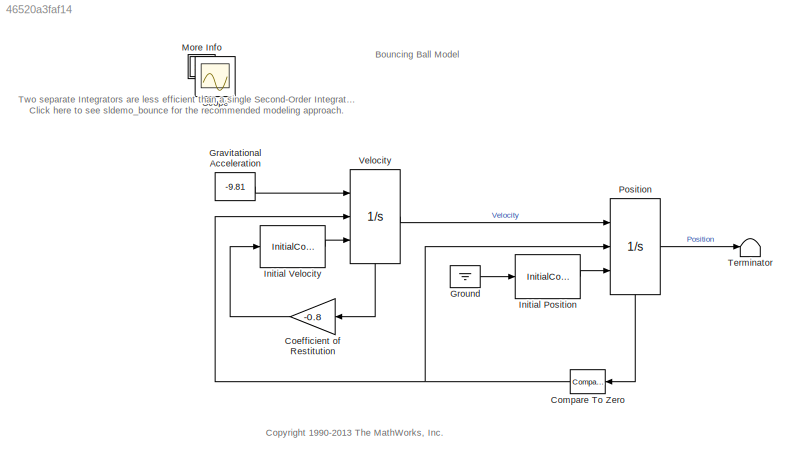
MODEL slx_46520a3faf14
KIND model
CONFIG AbsTol = 1e-6
CONFIG EnableMultiTasking = off
CONFIG FixedStep = auto
CONFIG MaxStep = 0.01
CONFIG MinStep = auto
CONFIG RelTol = 1e-3
CONFIG SampleTimeConstraint = Unconstrained
CONFIG SolverName = ode23
CONFIG StartTime = 0.0
CONFIG StopTime = 20
BLOCK [Gain] Coefficient of Restitution
  Gain = -0.8
  OutDataTypeStr = Inherit: Same as input
  ParamDataTypeStr = Inherit: Same as input
  SaturateOnIntegerOverflow = on
BLOCK [Reference] Compare To Zero  REF=simulink/Logic and Bit
Operations/Compare
To Zero
  Ports = [1, 1]
  SourceBlock = simulink/Logic and Bit\nOperations/Compare\nTo Zero
  SourceProductBaseCode = SL
  SourceType = Compare To Zero
BLOCK [Constant] Gravitational Acceleration
  NameLocation = top
  Value = -9.81
BLOCK [Ground] Ground
BLOCK [InitialCondition] Initial Position
  Value = 10
BLOCK [InitialCondition] Initial Velocity
  Value = 15
BLOCK [SubSystem] More Info
  OpenFcn = showExample('simulink_general/sldemo_bounceExample')
  Ports = []
  RequestExecContextInheritance = off
BLOCK [Integrator] Position
  ExternalReset = rising
  InitialConditionSource = external
  LimitOutput = on
  LowerSaturationLimit = 0
  NameLocation = top
  Ports = [3, 1, 0, 0, 1]
  ShowStatePort = on
BLOCK [Scope] Scope
  Floating = off
  IOType = viewer
  NumInputPorts = 1
  Ports = []
  ScopeSpecificationString = Simulink.scopes.TimeScopeBlockCfg('CurrentConfiguration', extmgr.ConfigurationSet(extmgr.Configuration('Core','General UI',true),extmgr.Configuration('Core','Source UI',true),extmgr.Configuration('Sources','WiredSimulink',true,'DataLoggingMaxPoints','7500','DataLoggingLimitDataPoints',true,'DataLoggingSaveFormat','Array','DataLoggingDecimation','1','DataLoggingDecimateData',true),extmgr.Configurat...<+2409ch>
BLOCK [Terminator] Terminator
  NameLocation = top
BLOCK [Integrator] Velocity
  ExternalReset = rising
  InitialConditionSource = external
  NameLocation = top
  Ports = [3, 1, 0, 0, 1]
  ShowStatePort = on
ANNOTATION (root): Bouncing Ball Model
ANNOTATION (root): <copyright redacted>
ANNOTATION (root): Two separate Integrators are less efficient than a single Second-Order Integrator for simulating a bouncing ball. Click here to see sldemo_bounce for the recommended modeling approach.
LINE Coefficient of Restitution:1 -> Initial Velocity:1
NET Compare To Zero:1 -> Position:2, Velocity:2
LINE Gravitational Acceleration:1 -> Velocity:1
LINE Ground:1 -> Initial Position:1
LINE Initial Position:1 -> Position:3
LINE Initial Velocity:1 -> Velocity:3
LINE Position:1 -> Terminator:1
LINE Position:state -> Compare To Zero:1
LINE Velocity:1 -> Position:1
LINE Velocity:state -> Coefficient of Restitution:1
note: NET lines group one-source signal fan-out (src -> all destinations, sorted); 1:1 wires keep LINE
